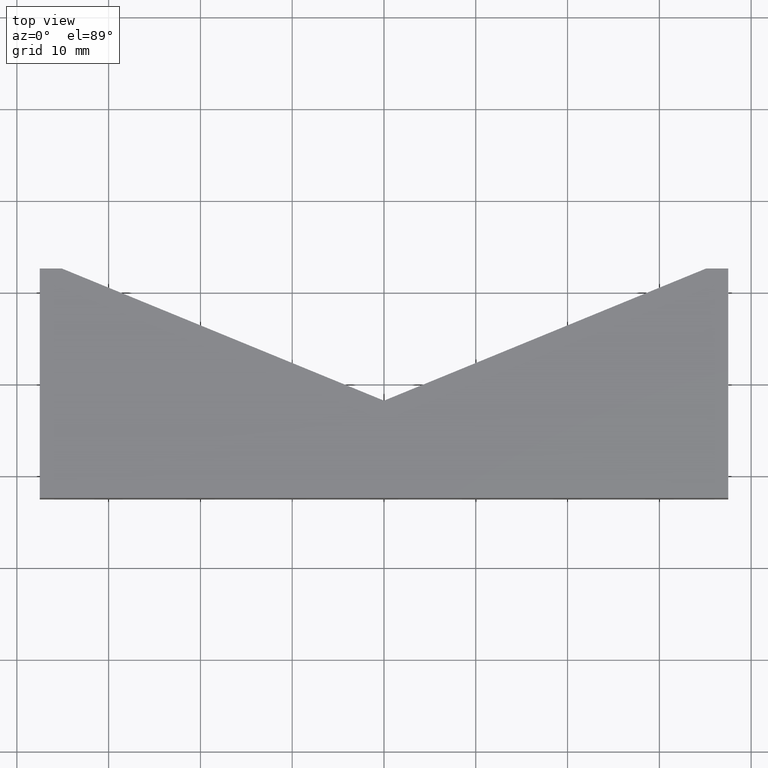
[diagram: clean part render]
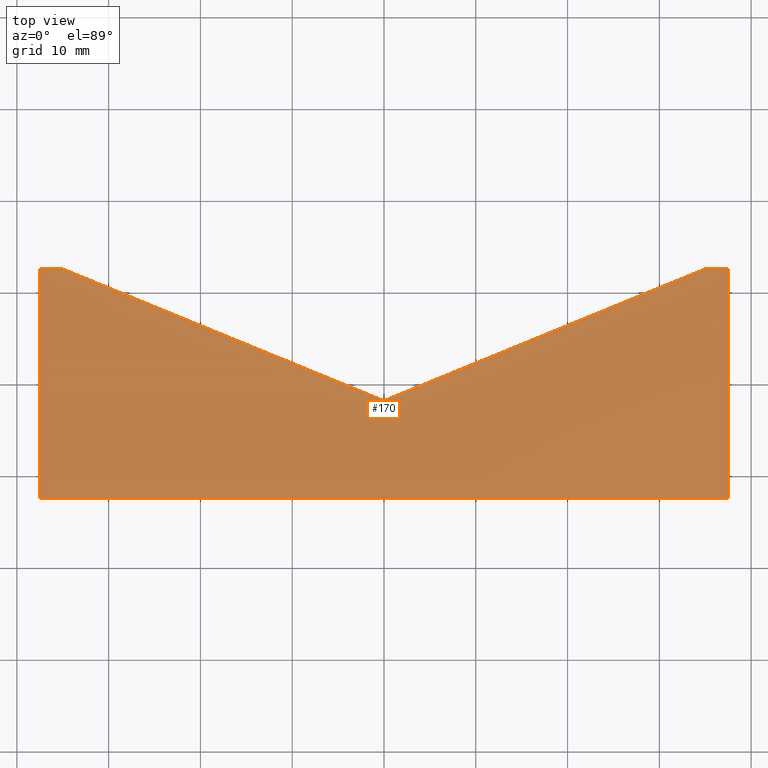
[diagram: same view with one face highlighted and labeled with its STEP entity id]
A machine part, top view. The second image highlights one B-rep face of the part: STEP entity #170.
In plain terms, the highlighted planar face has unit normal (0, 0, 1).
Its self-contained STEP definition (entity closure, byte-faithful):
#24=FACE_OUTER_BOUND('',#33,.T.);
#33=EDGE_LOOP('',(#146,#147,#148,#149,#150,#151,#152));
#41=LINE('',#263,#62);
#44=LINE('',#268,#65);
#46=LINE('',#272,#67);
#48=LINE('',#276,#69);
#50=LINE('',#280,#71);
#52=LINE('',#284,#73);
#54=LINE('',#287,#75);
#62=VECTOR('',#216,10.);
#65=VECTOR('',#221,10.);
#67=VECTOR('',#225,10.);
#69=VECTOR('',#229,10.);
#71=VECTOR('',#233,10.);
#73=VECTOR('',#237,10.);
#75=VECTOR('',#241,10.);
#83=VERTEX_POINT('',#261);
#84=VERTEX_POINT('',#262);
#85=VERTEX_POINT('',#267);
#86=VERTEX_POINT('',#271);
#87=VERTEX_POINT('',#275);
#88=VERTEX_POINT('',#279);
#89=VERTEX_POINT('',#283);
#97=EDGE_CURVE('',#83,#84,#41,.T.);
#100=EDGE_CURVE('',#84,#85,#44,.T.);
#102=EDGE_CURVE('',#85,#86,#46,.T.);
#104=EDGE_CURVE('',#86,#87,#48,.T.);
#106=EDGE_CURVE('',#87,#88,#50,.T.);
#108=EDGE_CURVE('',#88,#89,#52,.T.);
#110=EDGE_CURVE('',#89,#83,#54,.T.);
#146=ORIENTED_EDGE('',*,*,#97,.F.);
#147=ORIENTED_EDGE('',*,*,#110,.F.);
#148=ORIENTED_EDGE('',*,*,#108,.F.);
#149=ORIENTED_EDGE('',*,*,#106,.F.);
#150=ORIENTED_EDGE('',*,*,#104,.F.);
#151=ORIENTED_EDGE('',*,*,#102,.F.);
#152=ORIENTED_EDGE('',*,*,#100,.F.);
#161=PLANE('',#202);
#170=ADVANCED_FACE('',(#24),#161,.T.);
#202=AXIS2_PLACEMENT_3D('',#288,#242,#243);
#216=DIRECTION('',(0.925168618374746,0.379556356256306,0.));
#221=DIRECTION('',(1.,0.,0.));
#225=DIRECTION('',(0.,-1.,0.));
#229=DIRECTION('',(-1.,0.,0.));
#233=DIRECTION('',(0.,1.,0.));
#237=DIRECTION('',(1.,0.,0.));
#241=DIRECTION('',(0.925168618374746,-0.379556356256306,0.));
#242=DIRECTION('center_axis',(0.,0.,1.));
#243=DIRECTION('ref_axis',(1.,0.,0.));
#261=CARTESIAN_POINT('',(0.,-1.9,5.));
#262=CARTESIAN_POINT('',(35.1,12.5,5.));
#263=CARTESIAN_POINT('',(35.1,12.5,5.));
#267=CARTESIAN_POINT('',(37.5,12.5,5.));
#268=CARTESIAN_POINT('',(37.5,12.5,5.));
#271=CARTESIAN_POINT('',(37.5,-12.5,5.));
#272=CARTESIAN_POINT('',(37.5,-12.5,5.));
#275=CARTESIAN_POINT('',(-37.5,-12.5,5.));
#276=CARTESIAN_POINT('',(-37.5,-12.5,5.));
#279=CARTESIAN_POINT('',(-37.5,12.5,5.));
#280=CARTESIAN_POINT('',(-37.5,12.5,5.));
#283=CARTESIAN_POINT('',(-35.1,12.5,5.));
#284=CARTESIAN_POINT('',(-35.1,12.5,5.));
#287=CARTESIAN_POINT('',(0.,-1.9,5.));
#288=CARTESIAN_POINT('Origin',(-5.55111512312578E-16,-2.31111807193507,
5.));